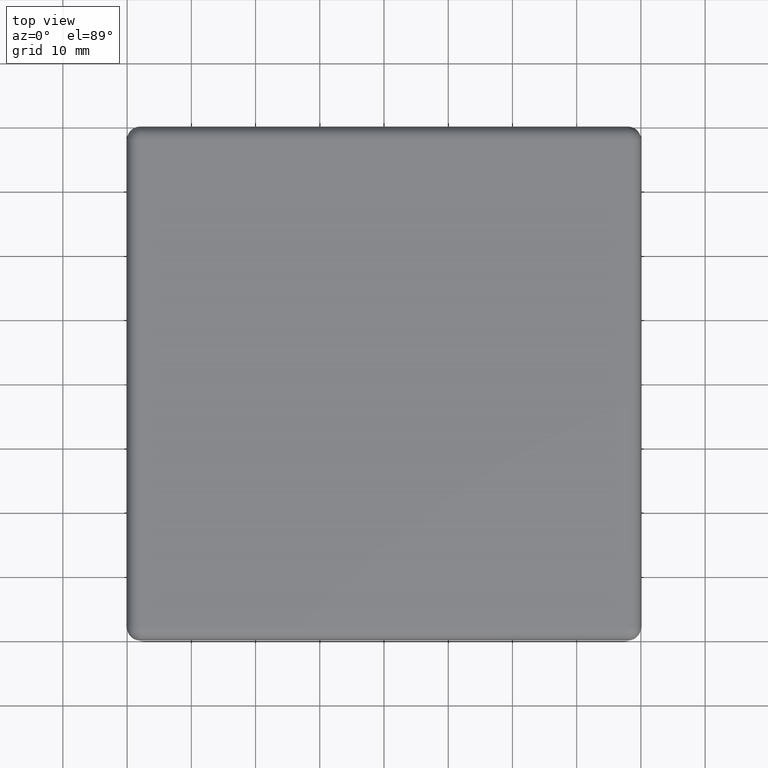
[diagram: clean part render]
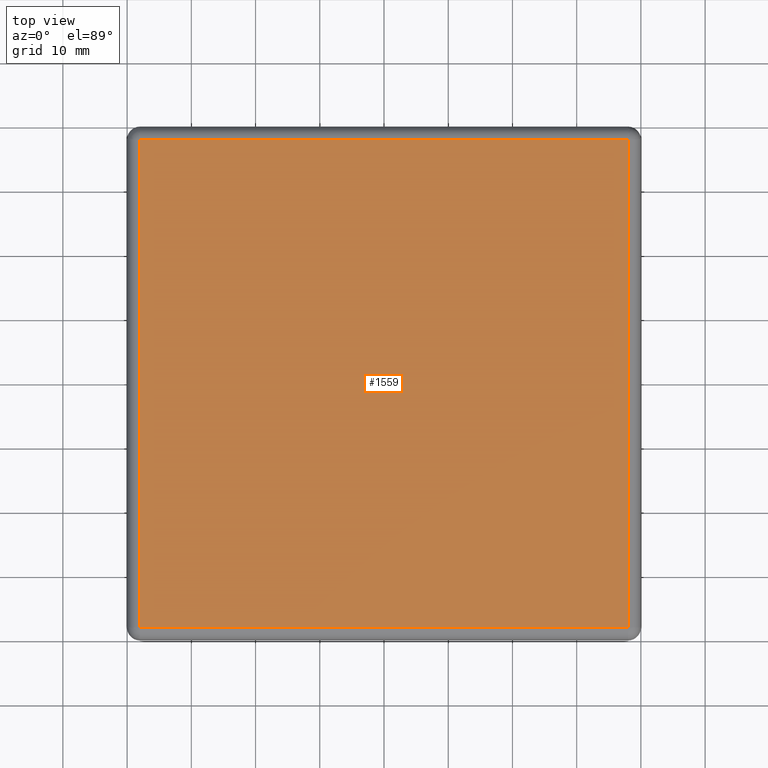
[diagram: same view with one face highlighted and labeled with its STEP entity id]
A machine part, top view. The second image highlights one B-rep face of the part: STEP entity #1559.
In plain terms, the highlighted planar face has unit normal (0, 0, 1).
Its self-contained STEP definition (entity closure, byte-faithful):
#113=FACE_OUTER_BOUND('',#205,.T.);
#205=EDGE_LOOP('',(#1087,#1088,#1089,#1090));
#295=LINE('',#2306,#423);
#296=LINE('',#2388,#424);
#305=LINE('',#2493,#433);
#306=LINE('',#2574,#434);
#423=VECTOR('',#1836,75.99999999968);
#424=VECTOR('',#1843,75.99999999968);
#433=VECTOR('',#1878,75.99999999968);
#434=VECTOR('',#1885,75.99999999968);
#634=VERTEX_POINT('',#2303);
#635=VERTEX_POINT('',#2305);
#636=VERTEX_POINT('',#2387);
#642=VERTEX_POINT('',#2491);
#793=EDGE_CURVE('',#634,#635,#295,.T.);
#796=EDGE_CURVE('',#635,#636,#296,.T.);
#811=EDGE_CURVE('',#642,#634,#305,.T.);
#814=EDGE_CURVE('',#636,#642,#306,.T.);
#1087=ORIENTED_EDGE('',*,*,#793,.F.);
#1088=ORIENTED_EDGE('',*,*,#811,.F.);
#1089=ORIENTED_EDGE('',*,*,#814,.F.);
#1090=ORIENTED_EDGE('',*,*,#796,.F.);
#1500=PLANE('',#1664);
#1559=ADVANCED_FACE('',(#113),#1500,.T.);
#1664=AXIS2_PLACEMENT_3D('',#2652,#1886,#1887);
#1836=DIRECTION('',(0.,-1.,0.));
#1843=DIRECTION('',(-1.,0.,0.));
#1878=DIRECTION('',(1.,0.,0.));
#1885=DIRECTION('',(0.,1.,0.));
#1886=DIRECTION('center_axis',(0.,0.,1.));
#1887=DIRECTION('ref_axis',(1.,0.,0.));
#2303=CARTESIAN_POINT('',(37.99999999984,77.99999999968,2.999999333988));
#2305=CARTESIAN_POINT('',(37.99999999984,2.,2.999999333988));
#2306=CARTESIAN_POINT('',(37.99999999984,77.99999999968,2.999999333988));
#2387=CARTESIAN_POINT('',(-37.99999999984,2.,2.999999333988));
#2388=CARTESIAN_POINT('',(37.99999999984,2.,2.999999333988));
#2491=CARTESIAN_POINT('',(-37.99999999984,77.99999999968,2.999999333988));
#2493=CARTESIAN_POINT('',(-37.99999999984,77.99999999968,2.999999333988));
#2574=CARTESIAN_POINT('',(-37.99999999984,2.,2.999999333988));
#2652=CARTESIAN_POINT('Origin',(-48.00000472443,-8.000004724581,2.999999333988));